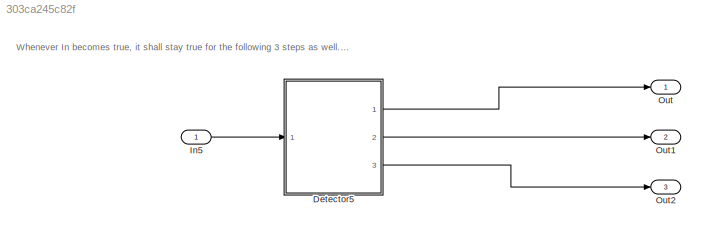
MODEL slx_303ca245c82f
KIND model
CONFIG AbsTol = auto
CONFIG EnableMultiTasking = off
CONFIG FixedStep = 0.200000
CONFIG MaxStep = auto
CONFIG MinStep = auto
CONFIG RelTol = 1e-3
CONFIG SampleTimeConstraint = Unconstrained
CONFIG Solver = FixedStepDiscrete
CONFIG SolverName = FixedStepDiscrete
CONFIG StartTime = 0.0
CONFIG StopTime = 19.8
WORKSPACE source: MAT-file member
WORKSPACE already_pp = 0
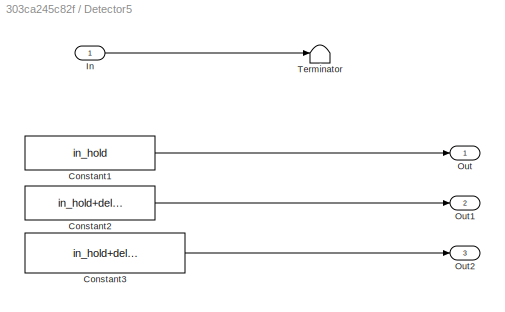
BLOCK [SubSystem] Detector5
  AncestorBlock = pp_lib/Detector_DelayedFixedDurationResetFalse
  Ports = [1, 3]
  RequestExecContextInheritance = off
  TreatAsAtomicUnit = on
  Variant = off
BLOCK [Constant] Detector5/Constant1
  OutDataTypeStr = uint16
  Value = in_hold
BLOCK [Constant] Detector5/Constant2
  OutDataTypeStr = uint16
  Value = in_hold+delay
BLOCK [Constant] Detector5/Constant3
  OutDataTypeStr = uint16
  Value = in_hold+delay+out_hold
BLOCK [Inport] Detector5/In
  IconDisplay = Port number
  OutDataTypeStr = boolean
  PortDimensions = 1
BLOCK [Outport] Detector5/Out
  IconDisplay = Port number
  OutDataTypeStr = uint16
BLOCK [Outport] Detector5/Out1
  IconDisplay = Port number
  OutDataTypeStr = uint16
  Port = 2
BLOCK [Outport] Detector5/Out2
  IconDisplay = Port number
  OutDataTypeStr = uint16
  Port = 3
BLOCK [Terminator] Detector5/Terminator
BLOCK [Inport] In5
  IconDisplay = Port number
  OutDataTypeStr = boolean
  PortDimensions = 1
BLOCK [Outport] Out
  IconDisplay = Port number
  OutDataTypeStr = uint16
BLOCK [Outport] Out1
  IconDisplay = Port number
  OutDataTypeStr = uint16
  Port = 2
BLOCK [Outport] Out2
  IconDisplay = Port number
  OutDataTypeStr = uint16
  Port = 3
ANNOTATION (root): Whenever In becomes true, it shall stay true for the following 3 steps as well.
LINE Detector5:1 -> Out:1
LINE Detector5:2 -> Out1:1
LINE Detector5:3 -> Out2:1
LINE In5:1 -> Detector5:1
